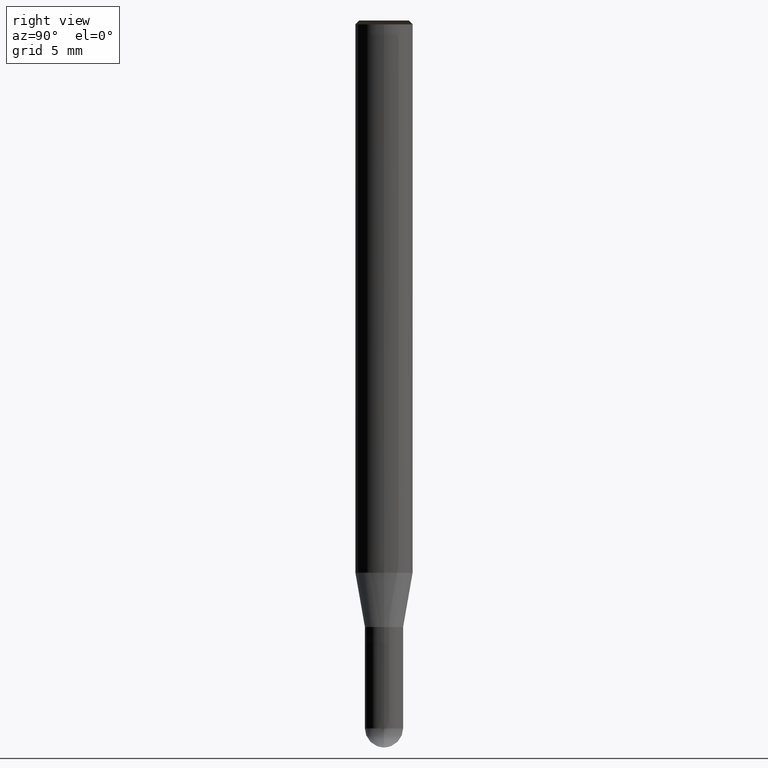
[diagram: clean part render]
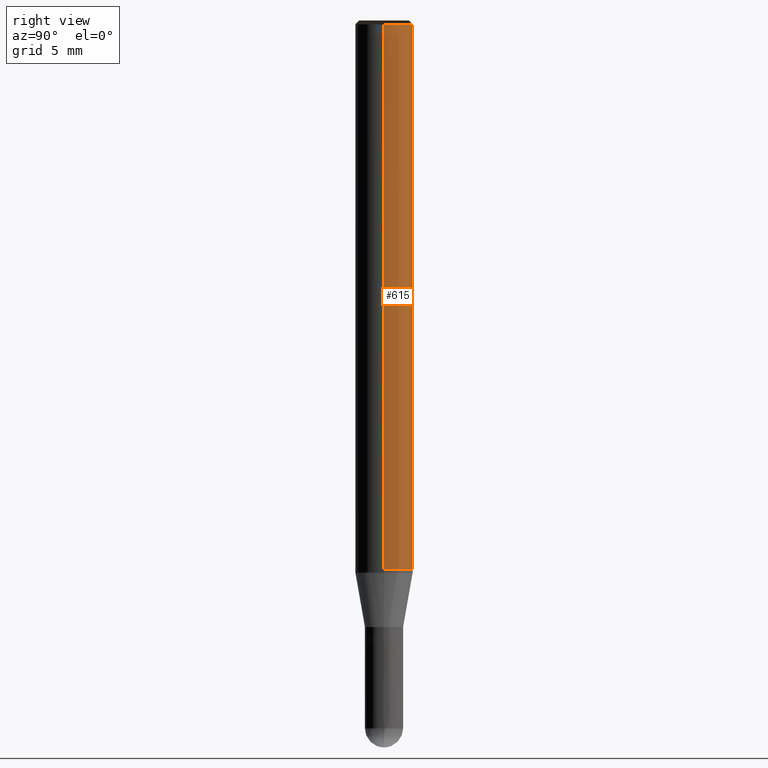
[diagram: same view with one face highlighted and labeled with its STEP entity id]
A machine part, right view. The second image highlights one B-rep face of the part: STEP entity #615.
In plain terms, the highlighted face is a freeform B-spline surface patch.
Its self-contained STEP definition (entity closure, byte-faithful):
#376=CARTESIAN_POINT('',(1.5,0.0,0.0));
#377=CARTESIAN_POINT('',(1.5,1.5,0.0));
#378=CARTESIAN_POINT('',(0.0,1.5,0.0));
#379=CARTESIAN_POINT('',(-1.5,1.5,0.0));
#380=CARTESIAN_POINT('',(-1.5,0.0,0.0));
#381=CARTESIAN_POINT('',(1.5,0.0,28.5));
#382=CARTESIAN_POINT('',(1.5,1.5,28.5));
#383=CARTESIAN_POINT('',(0.0,1.5,28.5));
#384=CARTESIAN_POINT('',(-1.5,1.5,28.5));
#385=CARTESIAN_POINT('',(-1.5,0.0,28.5));
#596=(
BOUNDED_SURFACE()
B_SPLINE_SURFACE(1,2,(
(#376,#377,#378,#379,#380),
(#381,#382,#383,#384,#385)
), .UNSPECIFIED.,.F.,.F.,.F.)
B_SPLINE_SURFACE_WITH_KNOTS((2,2),(3,2,3),(
0.0,1.0),(
0.0,0.5,1.0), .UNSPECIFIED.)
GEOMETRIC_REPRESENTATION_ITEM()
RATIONAL_B_SPLINE_SURFACE(((1.0,0.707106781187,1.0,0.707106781187,1.0),
(1.0,0.707106781187,1.0,0.707106781187,1.0)
))
REPRESENTATION_ITEM('')
SURFACE()
);
#597=(
BOUNDED_CURVE()
B_SPLINE_CURVE(2,(#380,#379,#378,#377,#376),.UNSPECIFIED.,.F.,.F.)
B_SPLINE_CURVE_WITH_KNOTS((3,2,3),
(0.0,0.5,1.0),.UNSPECIFIED.)
CURVE()
GEOMETRIC_REPRESENTATION_ITEM()
RATIONAL_B_SPLINE_CURVE((1.0,0.707106781187,1.0,0.707106781187,1.0))
REPRESENTATION_ITEM('')
);
#598=(
BOUNDED_CURVE()
B_SPLINE_CURVE(1,(#376,#381),.UNSPECIFIED.,.F.,.F.)
B_SPLINE_CURVE_WITH_KNOTS((2,2),
(0.0,1.0),.UNSPECIFIED.)
CURVE()
GEOMETRIC_REPRESENTATION_ITEM()
RATIONAL_B_SPLINE_CURVE((1.0,1.0))
REPRESENTATION_ITEM('')
);
#599=(
BOUNDED_CURVE()
B_SPLINE_CURVE(2,(#381,#382,#383,#384,#385),.UNSPECIFIED.,.F.,.F.)
B_SPLINE_CURVE_WITH_KNOTS((3,2,3),
(0.0,0.5,1.0),.UNSPECIFIED.)
CURVE()
GEOMETRIC_REPRESENTATION_ITEM()
RATIONAL_B_SPLINE_CURVE((1.0,0.707106781187,1.0,0.707106781187,1.0))
REPRESENTATION_ITEM('')
);
#600=(
BOUNDED_CURVE()
B_SPLINE_CURVE(1,(#385,#380),.UNSPECIFIED.,.F.,.F.)
B_SPLINE_CURVE_WITH_KNOTS((2,2),
(0.0,1.0),.UNSPECIFIED.)
CURVE()
GEOMETRIC_REPRESENTATION_ITEM()
RATIONAL_B_SPLINE_CURVE((1.0,1.0))
REPRESENTATION_ITEM('')
);
#601=VERTEX_POINT('',#376);
#602=VERTEX_POINT('',#380);
#603=VERTEX_POINT('',#381);
#604=VERTEX_POINT('',#385);
#605=EDGE_CURVE('',#602,#601,#597,.T.);
#606=EDGE_CURVE('',#601,#603,#598,.T.);
#607=EDGE_CURVE('',#603,#604,#599,.T.);
#608=EDGE_CURVE('',#604,#602,#600,.T.);
#609=ORIENTED_EDGE('',*,*,#605,.T.);
#610=ORIENTED_EDGE('',*,*,#606,.T.);
#611=ORIENTED_EDGE('',*,*,#607,.T.);
#612=ORIENTED_EDGE('',*,*,#608,.T.);
#613=EDGE_LOOP('',(#609,#610,#611,#612));
#614=FACE_OUTER_BOUND('',#613,.T.);
#615=ADVANCED_FACE('',(#614),#596,.T.);